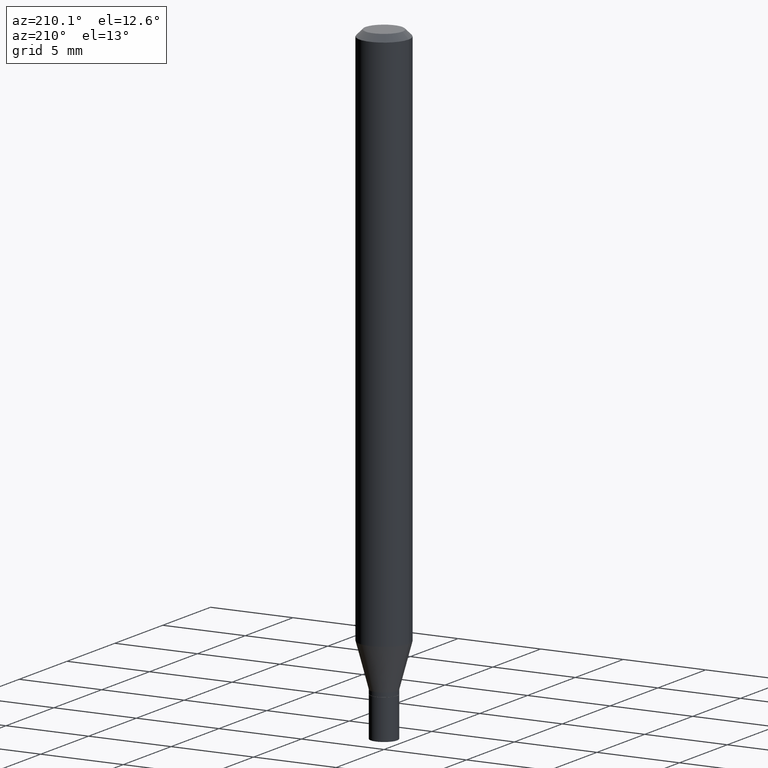
[diagram: clean part render]
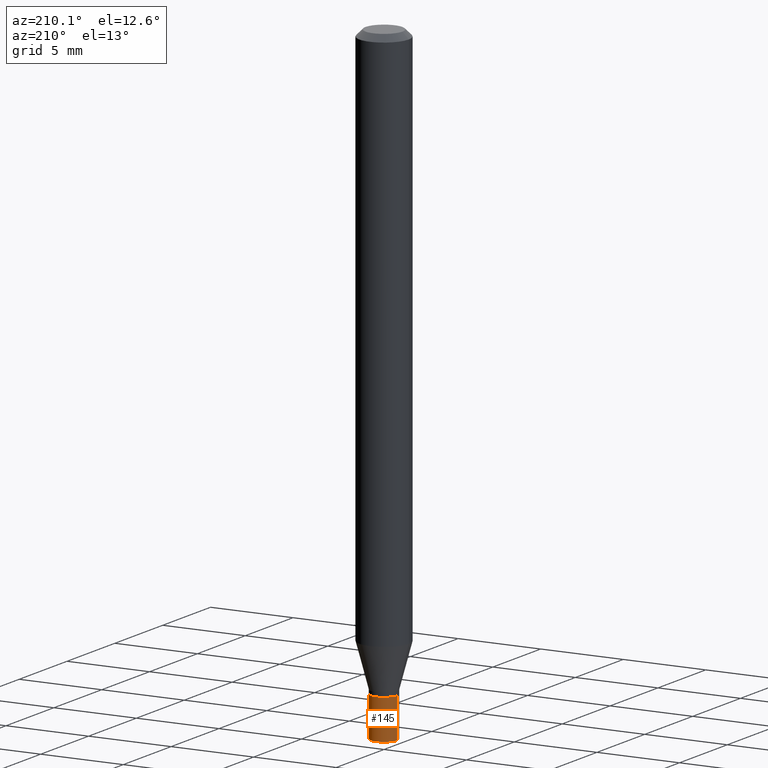
[diagram: same view with one face highlighted and labeled with its STEP entity id]
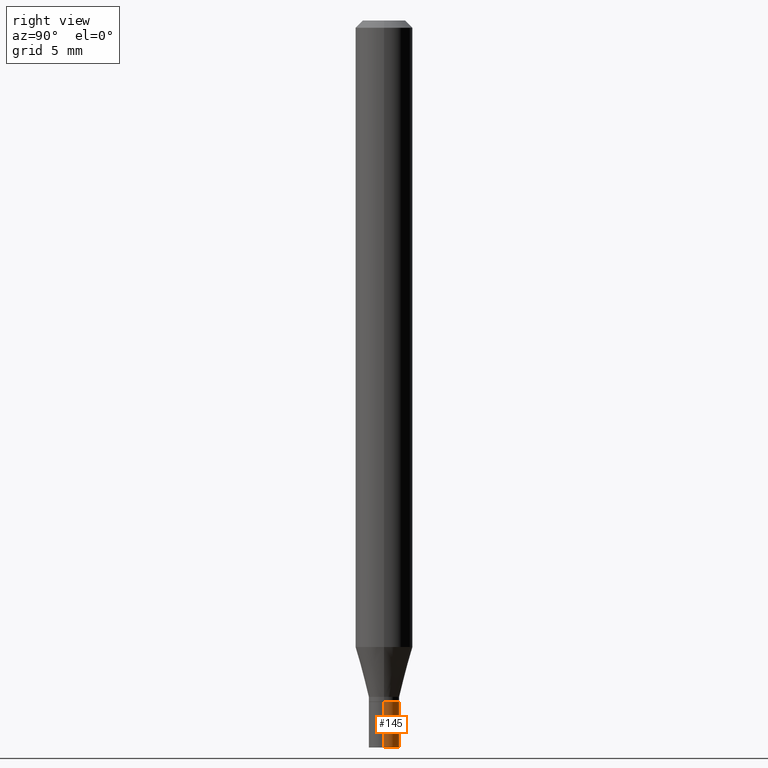
[diagram: same view with one face highlighted and labeled with its STEP entity id]
A machine part, auxiliary view. The second image highlights one B-rep face of the part: STEP entity #145.
A second angle (right view) of the same face is appended — the face is thin or edge-on in the first view.
In plain terms, the highlighted cylindrical surface (edge-blend (fillet) strip) has radius 0.8001 mm, axis along (-0, 0, 1).
Its self-contained STEP definition (entity closure, byte-faithful):
#1 = VERTEX_POINT ( 'NONE', #8 ) ;
#2 = AXIS2_PLACEMENT_3D ( 'NONE', #441, #227, #166 ) ;
#8 = CARTESIAN_POINT ( 'NONE',  ( 0.03150000000000000022, -5.457185332611835515E-15, -1.500000000000000222 ) ) ;
#17 = FACE_OUTER_BOUND ( 'NONE', #431, .T. ) ;
#20 = VECTOR ( 'NONE', #350, 39.37007874015748143 ) ;
#37 = CARTESIAN_POINT ( 'NONE',  ( -0.03150000000000000022, 2.238209617644315601E-16, -1.549464553430295327E-30 ) ) ;
#75 = ORIENTED_EDGE ( 'NONE', *, *, #138, .T. ) ;
#85 = CIRCLE ( 'NONE', #2, 0.03150000000000000022 ) ;
#102 = ORIENTED_EDGE ( 'NONE', *, *, #460, .T. ) ;
#121 = DIRECTION ( 'NONE',  ( 1.000000000000000000, -6.982962677686255667E-15, 0.000000000000000000 ) ) ;
#130 = LINE ( 'NONE', #376, #419 ) ;
#135 = DIRECTION ( 'NONE',  ( -2.445468806185136877E-29, 3.491481338843145188E-15, 1.000000000000000000 ) ) ;
#138 = EDGE_CURVE ( 'NONE', #1, #451, #85, .T. ) ;
#145 = ADVANCED_FACE ( 'NONE', ( #17 ), #296, .T. ) ;
#149 = EDGE_CURVE ( 'NONE', #418, #358, #449, .T. ) ;
#151 = ORIENTED_EDGE ( 'NONE', *, *, #432, .F. ) ;
#166 = DIRECTION ( 'NONE',  ( 1.000000000000000000, -6.982962677686255667E-15, 0.000000000000000000 ) ) ;
#169 = CARTESIAN_POINT ( 'NONE',  ( 0.000000000000000000, 0.000000000000000000, 0.000000000000000000 ) ) ;
#174 = CARTESIAN_POINT ( 'NONE',  ( -0.03150000000000000022, -4.848428553239948021E-15, -1.405499999999999972 ) ) ;
#181 = CARTESIAN_POINT ( 'NONE',  ( 0.03150000000000000022, -5.127240346091158719E-15, -1.405499999999999972 ) ) ;
#204 = LINE ( 'NONE', #37, #20 ) ;
#227 = DIRECTION ( 'NONE',  ( -2.445468806185136597E-29, 3.491481338843145583E-15, 1.000000000000000000 ) ) ;
#262 = AXIS2_PLACEMENT_3D ( 'NONE', #444, #267, #121 ) ;
#267 = DIRECTION ( 'NONE',  ( -2.445468806185136597E-29, 3.491481338843145583E-15, 1.000000000000000000 ) ) ;
#274 = AXIS2_PLACEMENT_3D ( 'NONE', #169, #438, #301 ) ;
#296 = CYLINDRICAL_SURFACE ( 'NONE', #274, 0.03150000000000000022 ) ;
#301 = DIRECTION ( 'NONE',  ( 1.000000000000000000, -6.982962677686265922E-15, 4.876176775795936353E-29 ) ) ;
#311 = CARTESIAN_POINT ( 'NONE',  ( -0.03150000000000000022, -4.848428553239948021E-15, -1.500000000000000222 ) ) ;
#350 = DIRECTION ( 'NONE',  ( -2.445468806185136877E-29, 3.491481338843145188E-15, 1.000000000000000000 ) ) ;
#358 = VERTEX_POINT ( 'NONE', #174 ) ;
#376 = CARTESIAN_POINT ( 'NONE',  ( 0.03150000000000000022, -2.199633243471173876E-16, 1.535995684375719887E-30 ) ) ;
#418 = VERTEX_POINT ( 'NONE', #181 ) ;
#419 = VECTOR ( 'NONE', #135, 39.37007874015748143 ) ;
#431 = EDGE_LOOP ( 'NONE', ( #75, #102, #458, #151 ) ) ;
#432 = EDGE_CURVE ( 'NONE', #1, #418, #130, .T. ) ;
#438 = DIRECTION ( 'NONE',  ( -2.445468806185136597E-29, 3.491481338843145583E-15, 1.000000000000000000 ) ) ;
#441 = CARTESIAN_POINT ( 'NONE',  ( 3.668203209277704895E-29, -5.237222008264718177E-15, -1.500000000000000222 ) ) ;
#444 = CARTESIAN_POINT ( 'NONE',  ( 3.437106407093210258E-29, -4.907277021744041380E-15, -1.405499999999999972 ) ) ;
#449 = CIRCLE ( 'NONE', #262, 0.03150000000000000022 ) ;
#451 = VERTEX_POINT ( 'NONE', #311 ) ;
#458 = ORIENTED_EDGE ( 'NONE', *, *, #149, .F. ) ;
#460 = EDGE_CURVE ( 'NONE', #451, #358, #204, .T. ) ;